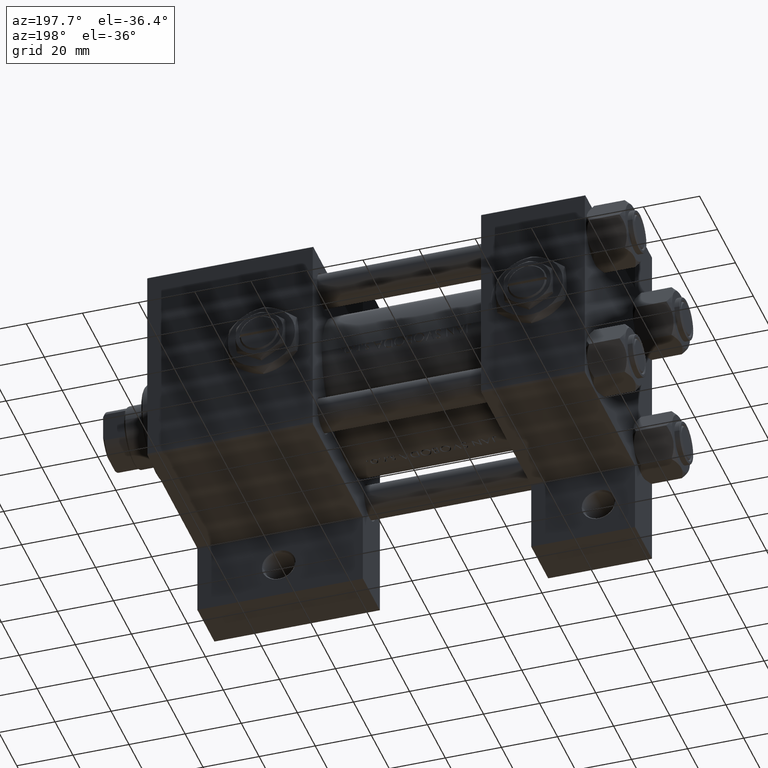
[diagram: clean part render]
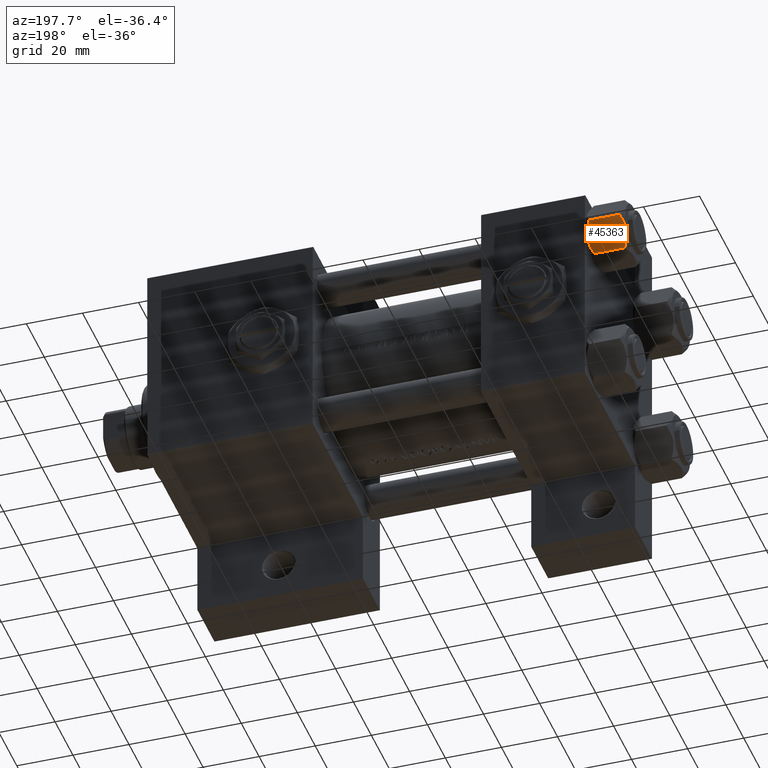
[diagram: same view with one face highlighted and labeled with its STEP entity id]
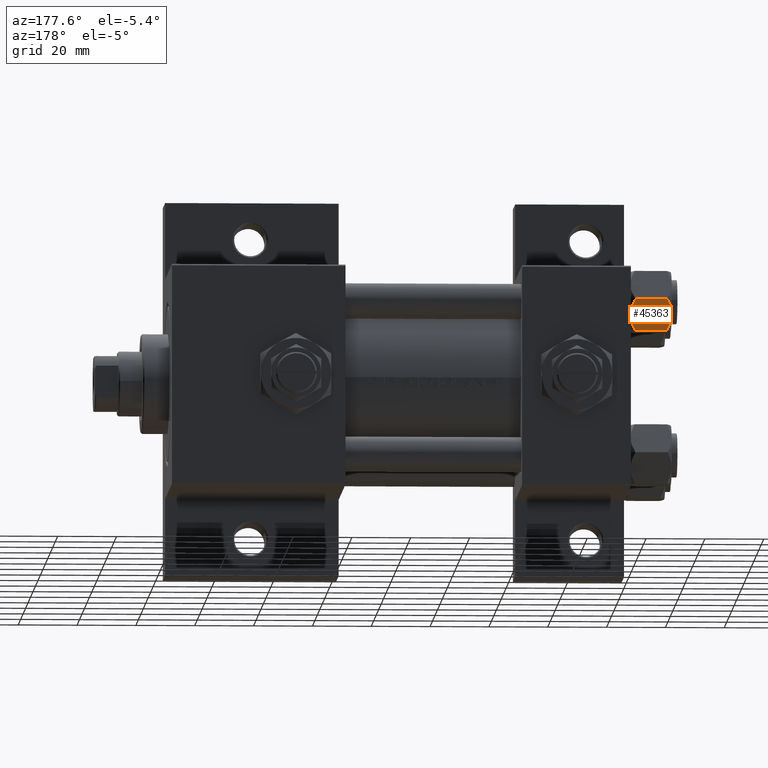
[diagram: same view with one face highlighted and labeled with its STEP entity id]
A machine part, auxiliary view. The second image highlights one B-rep face of the part: STEP entity #45363.
A second angle (auxiliary view) of the same face is appended — the face is thin or edge-on in the first view.
In plain terms, the highlighted planar face has unit normal (-0, -0.866, 0.5).
Its self-contained STEP definition (entity closure, byte-faithful):
#73 = CARTESIAN_POINT ( 'NONE',  ( 8.715000000000003411, 5.031607595987588333, -14.00000000000000000 ) ) ;
#137 = AXIS2_PLACEMENT_3D ( 'NONE', #2784, #14661, #29771 ) ;
#2240 = CARTESIAN_POINT ( 'NONE',  ( 8.715000000000003411, 5.031607595987588333, -14.00000000000000000 ) ) ;
#2480 = CARTESIAN_POINT ( 'NONE',  ( 11.62000000000000099, -1.795242522838921761E-15, -12.44321519197518455 ) ) ;
#2722 = ORIENTED_EDGE ( 'NONE', *, *, #30993, .F. ) ;
#2784 = CARTESIAN_POINT ( 'NONE',  ( 5.810000000000000497, 10.06321519197518022, -14.00000000000000000 ) ) ;
#3051 = CARTESIAN_POINT ( 'NONE',  ( 8.202333004087902779, 5.919572880271052995, -13.96005881939309212 ) ) ;
#3180 = EDGE_CURVE ( 'NONE', #17757, #29814, #18308, .T. ) ;
#4688 = CARTESIAN_POINT ( 'NONE',  ( 7.713000053756308816, 6.767122412062953174, -0.1545239700039844066 ) ) ;
#5108 = EDGE_CURVE ( 'NONE', #14302, #29814, #5322, .T. ) ;
#5322 = B_SPLINE_CURVE_WITH_KNOTS ( 'NONE', 3,
 ( #42349, #45826, #4688, #15819, #23505, #38639 ),
 .UNSPECIFIED., .F., .F.,
 ( 4, 2, 4 ),
 ( 0.006022845781655587240, 0.009013049135303635023, 0.01200325248895168367 ),
 .UNSPECIFIED. ) ;
#6021 = ORIENTED_EDGE ( 'NONE', *, *, #5108, .F. ) ;
#6201 = CARTESIAN_POINT ( 'NONE',  ( 9.220295946303432189, 4.156409344131451356, -14.00000000000000178 ) ) ;
#7142 = LINE ( 'NONE', #10377, #14580 ) ;
#10377 = CARTESIAN_POINT ( 'NONE',  ( 11.62000000000000099, -1.813166800014576593E-15, -14.00000000000000000 ) ) ;
#10593 = CARTESIAN_POINT ( 'NONE',  ( 9.974696630283190757, 2.849749030213790224, -0.3002673809867378307 ) ) ;
#10649 = CARTESIAN_POINT ( 'NONE',  ( 5.810000000000000497, 10.06321519197518022, -14.00000000000000000 ) ) ;
#11241 = CARTESIAN_POINT ( 'NONE',  ( 8.460569896449619876, 5.472293462311864864, -14.00000000000000355 ) ) ;
#12256 = CARTESIAN_POINT ( 'NONE',  ( 11.62000000000000099, -1.607967606633101042E-15, -1.556784808024815669 ) ) ;
#12284 = VERTEX_POINT ( 'NONE', #13507 ) ;
#13507 = CARTESIAN_POINT ( 'NONE',  ( 11.62000000000000099, -1.795242522838921761E-15, -12.44321519197518455 ) ) ;
#14302 = VERTEX_POINT ( 'NONE', #38613 ) ;
#14580 = VECTOR ( 'NONE', #25477, 1000.000000000000000 ) ;
#14661 = DIRECTION ( 'NONE',  ( -0.8660254037844387076, -0.4999999999999998335, 0.000000000000000000 ) ) ;
#14775 = CARTESIAN_POINT ( 'NONE',  ( 9.729165168613654657, 3.275021996682081493, -0.1903979688073423326 ) ) ;
#15819 = CARTESIAN_POINT ( 'NONE',  ( 6.733375043383499126, 8.463882702393842550, -0.7114554706434507159 ) ) ;
#17441 = CARTESIAN_POINT ( 'NONE',  ( 5.810000000000000497, 10.06321519197518022, -12.44321519197518278 ) ) ;
#17757 = VERTEX_POINT ( 'NONE', #18701 ) ;
#17764 = CARTESIAN_POINT ( 'NONE',  ( 10.69859855102501278, 1.595914123792261829, -0.7141438259524660603 ) ) ;
#17879 = ORIENTED_EDGE ( 'NONE', *, *, #27734, .F. ) ;
#18000 = CARTESIAN_POINT ( 'NONE',  ( 9.227666995912102266, 4.143642311704122783, -0.03994118060690848154 ) ) ;
#18308 = LINE ( 'NONE', #10649, #32291 ) ;
#18701 = CARTESIAN_POINT ( 'NONE',  ( 5.810000000000000497, 10.06321519197518022, -12.44321519197518278 ) ) ;
#19609 = CARTESIAN_POINT ( 'NONE',  ( 5.810000000000000497, 10.06321519197518022, -1.556784808024817890 ) ) ;
#19693 = EDGE_CURVE ( 'NONE', #31996, #12284, #33843, .T. ) ;
#19843 = ORIENTED_EDGE ( 'NONE', *, *, #21602, .F. ) ;
#21299 = CARTESIAN_POINT ( 'NONE',  ( 10.69662495661650503, 1.599332489581332339, -13.28854452935654962 ) ) ;
#21602 = EDGE_CURVE ( 'NONE', #12284, #30306, #7142, .T. ) ;
#21961 = CARTESIAN_POINT ( 'NONE',  ( 11.62000000000000099, -1.607967606633101042E-15, -1.556784808024815669 ) ) ;
#22019 = DIRECTION ( 'NONE',  ( -0.000000000000000000, -0.000000000000000000, 1.000000000000000000 ) ) ;
#22855 = CARTESIAN_POINT ( 'NONE',  ( 7.455303369716809847, 7.213466161761385997, -13.69973261901326289 ) ) ;
#23505 = CARTESIAN_POINT ( 'NONE',  ( 6.265018354709775750, 9.275100283241453525, -1.101766453314955152 ) ) ;
#25380 = EDGE_LOOP ( 'NONE', ( #17879, #30657, #6021, #2722, #19843, #27040 ) ) ;
#25477 = DIRECTION ( 'NONE',  ( -0.000000000000000000, -0.000000000000000000, 1.000000000000000000 ) ) ;
#25692 = CARTESIAN_POINT ( 'NONE',  ( 8.715000000000003411, 5.031607595987588333, 0.000000000000000000 ) ) ;
#27040 = ORIENTED_EDGE ( 'NONE', *, *, #19693, .F. ) ;
#27734 = EDGE_CURVE ( 'NONE', #17757, #31996, #36425, .T. ) ;
#28847 = CARTESIAN_POINT ( 'NONE',  ( 6.265545725125283738, 9.274186850887380373, -12.89876091710046602 ) ) ;
#29633 = B_SPLINE_CURVE_WITH_KNOTS ( 'NONE', 3,
 ( #21961, #33121, #17764, #10593, #14775, #18000, #29644, #25692 ),
 .UNSPECIFIED., .F., .F.,
 ( 4, 2, 2, 4 ),
 ( 2.544312114904956385E-07, 0.003011550106433539924, 0.004517197944044563582, 0.006022845781655587240 ),
 .UNSPECIFIED. ) ;
#29644 = CARTESIAN_POINT ( 'NONE',  ( 8.969430103550381617, 4.590921729663312689, 1.314595134138673732E-15 ) ) ;
#29771 = DIRECTION ( 'NONE',  ( 0.4999999999999998335, -0.8660254037844387076, 0.000000000000000000 ) ) ;
#29814 = VERTEX_POINT ( 'NONE', #19609 ) ;
#30306 = VERTEX_POINT ( 'NONE', #12256 ) ;
#30657 = ORIENTED_EDGE ( 'NONE', *, *, #3180, .T. ) ;
#30993 = EDGE_CURVE ( 'NONE', #30306, #14302, #29633, .T. ) ;
#31996 = VERTEX_POINT ( 'NONE', #2240 ) ;
#32291 = VECTOR ( 'NONE', #22019, 1000.000000000000000 ) ;
#32780 = PLANE ( 'NONE',  #137 ) ;
#33121 = CARTESIAN_POINT ( 'NONE',  ( 11.16445427487472131, 0.7890283410877951820, -1.101239082899533317 ) ) ;
#33186 = CARTESIAN_POINT ( 'NONE',  ( 8.715000000000003411, 5.031607595987588333, -14.00000000000000000 ) ) ;
#33498 = FACE_OUTER_BOUND ( 'NONE', #25380, .T. ) ;
#33843 = B_SPLINE_CURVE_WITH_KNOTS ( 'NONE', 3,
 ( #33186, #6201, #48071, #21299, #36432, #2480 ),
 .UNSPECIFIED., .F., .F.,
 ( 4, 2, 4 ),
 ( 0.006022845781655591577, 0.009013049135303638493, 0.01200325248895168714 ),
 .UNSPECIFIED. ) ;
#36425 = B_SPLINE_CURVE_WITH_KNOTS ( 'NONE', 3,
 ( #17441, #28847, #41699, #22855, #37500, #3051, #11241, #73 ),
 .UNSPECIFIED., .F., .F.,
 ( 4, 2, 2, 4 ),
 ( 2.544312114902182352E-07, 0.003011550106433540791, 0.004517197944044566184, 0.006022845781655591577 ),
 .UNSPECIFIED. ) ;
#36432 = CARTESIAN_POINT ( 'NONE',  ( 11.16498164529022574, 0.7881149087337280257, -12.89823354668504862 ) ) ;
#37500 = CARTESIAN_POINT ( 'NONE',  ( 7.700834831386346835, 6.788193195293095172, -13.80960203119265728 ) ) ;
#38613 = CARTESIAN_POINT ( 'NONE',  ( 8.715000000000003411, 5.031607595987588333, 0.000000000000000000 ) ) ;
#38639 = CARTESIAN_POINT ( 'NONE',  ( 5.810000000000000497, 10.06321519197518022, -1.556784808024817890 ) ) ;
#41699 = CARTESIAN_POINT ( 'NONE',  ( 6.731401448974989599, 8.467301068182914392, -13.28585617404753272 ) ) ;
#42349 = CARTESIAN_POINT ( 'NONE',  ( 8.715000000000003411, 5.031607595987588333, 0.000000000000000000 ) ) ;
#45363 = ADVANCED_FACE ( 'NONE', ( #33498 ), #32780, .F. ) ;
#45826 = CARTESIAN_POINT ( 'NONE',  ( 8.209704053696574633, 5.906805847843726198, 1.265467223197924312E-15 ) ) ;
#48071 = CARTESIAN_POINT ( 'NONE',  ( 9.716999946243698005, 3.296092779912227044, -13.84547602999601779 ) ) ;